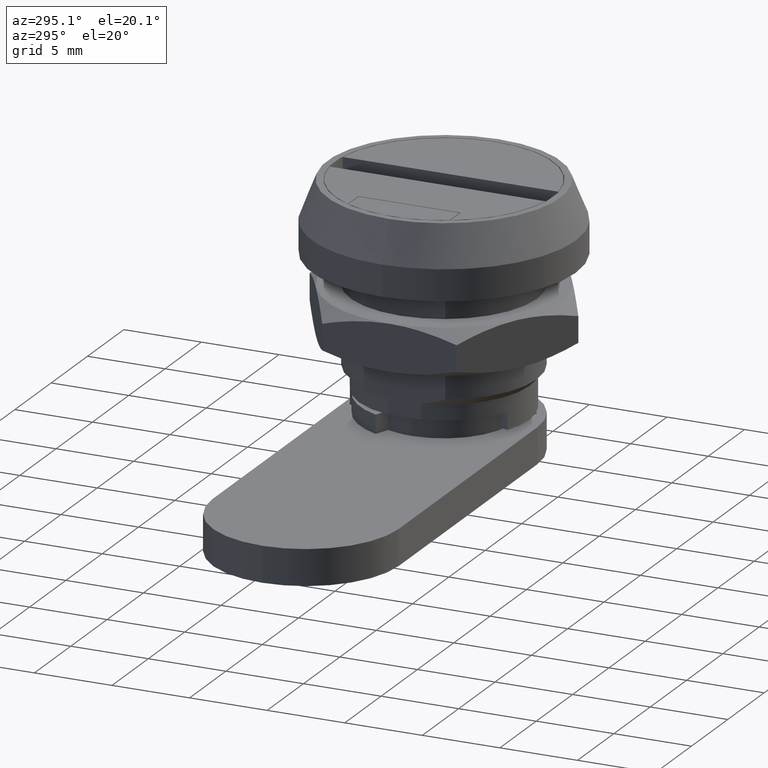
[diagram: clean part render]
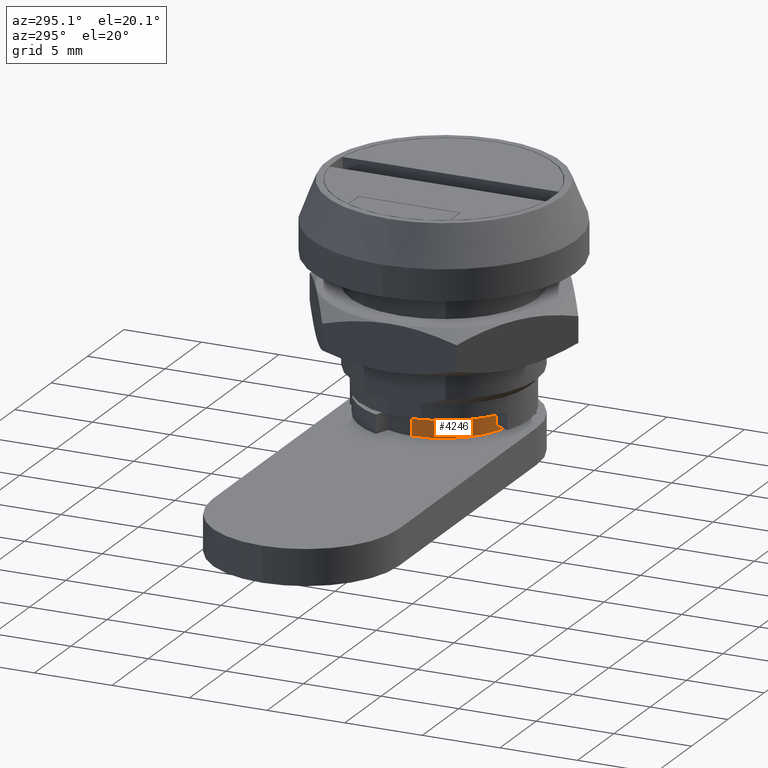
[diagram: same view with one face highlighted and labeled with its STEP entity id]
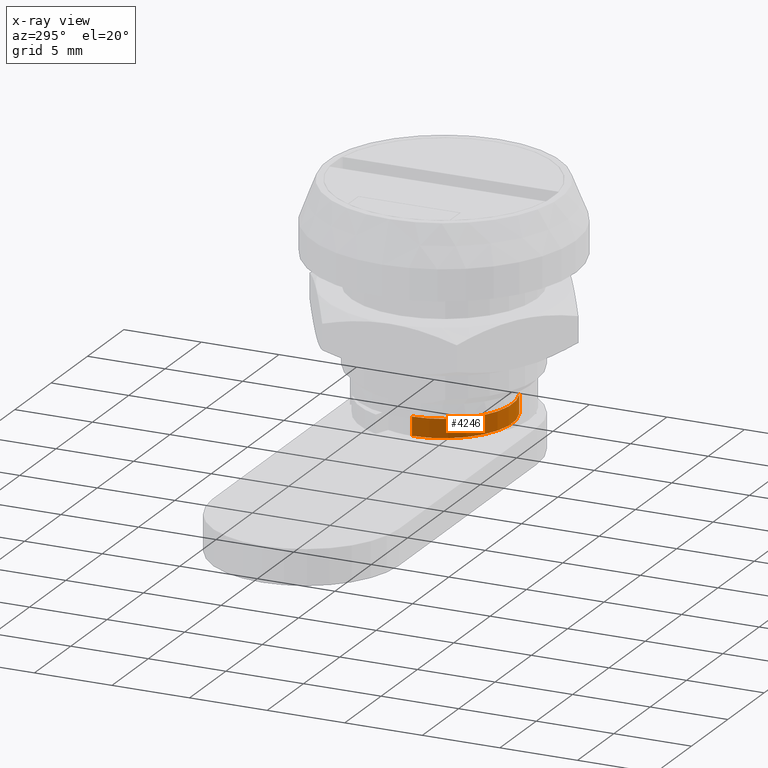
[diagram: x-ray of the same camera — body ghosted, the highlighted face saturated]
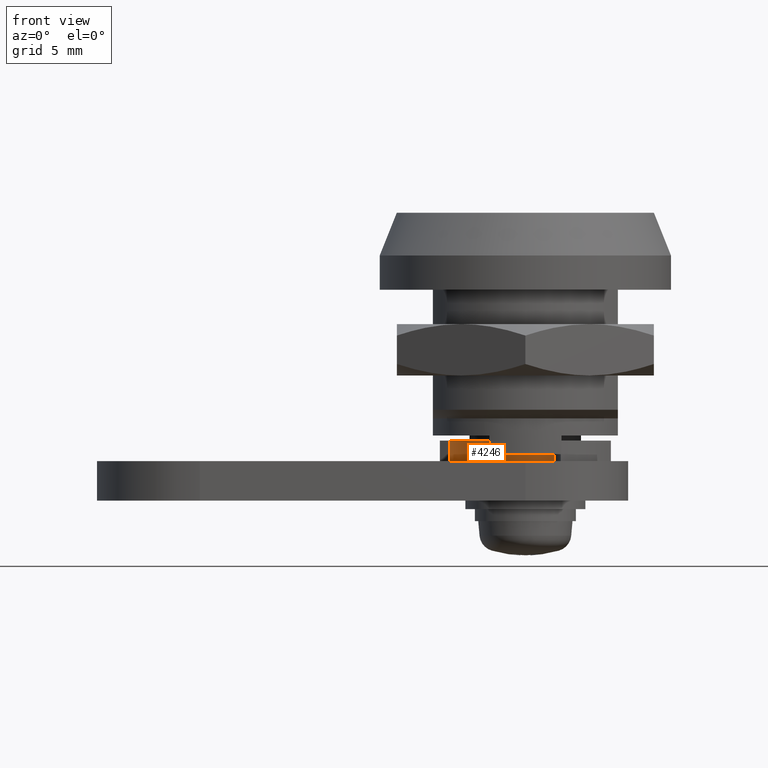
[diagram: same view with one face highlighted and labeled with its STEP entity id]
A machine part, auxiliary view. The second image highlights one B-rep face of the part: STEP entity #4246.
The next image is the same camera in x-ray: the body ghosted, the highlighted face saturated — about 0% of this face is hidden behind the body in this view.
A second angle (front view) of the same face is appended — the face is thin or edge-on in the first view.
In plain terms, the highlighted cylindrical surface (partial cylindrical patch) has radius 4.4 mm, axis along (-0, -0, -1).
Its self-contained STEP definition (entity closure, byte-faithful):
#218 = DIRECTION ( 'NONE',  ( 1.000000000000000000, 0.0000000000000000000, 0.0000000000000000000 ) ) ;
#244 = VERTEX_POINT ( 'NONE', #707 ) ;
#262 = CIRCLE ( 'NONE', #2223, 4.399999999968374100 ) ;
#264 = CIRCLE ( 'NONE', #983, 4.399999999968374100 ) ;
#272 = CARTESIAN_POINT ( 'NONE',  ( 1.683807102394859300, -4.065069943020209700, 0.0000000000000000000 ) ) ;
#454 = CARTESIAN_POINT ( 'NONE',  ( -4.399999999968374100, 0.0000000000000000000, 1.200000000000000000 ) ) ;
#650 = CARTESIAN_POINT ( 'NONE',  ( 0.0000000000000000000, 0.0000000000000000000, 0.0000000000000000000 ) ) ;
#653 = LINE ( 'NONE', #3643, #4350 ) ;
#664 = DIRECTION ( 'NONE',  ( 0.0000000000000000000, 0.0000000000000000000, 1.000000000000000000 ) ) ;
#707 = CARTESIAN_POINT ( 'NONE',  ( -4.399999999968374100, 0.0000000000000000000, 0.0000000000000000000 ) ) ;
#983 = AXIS2_PLACEMENT_3D ( 'NONE', #650, #664, #4424 ) ;
#1065 = FACE_OUTER_BOUND ( 'NONE', #3461, .T. ) ;
#1533 = ORIENTED_EDGE ( 'NONE', *, *, #2234, .F. ) ;
#1550 = VERTEX_POINT ( 'NONE', #272 ) ;
#1794 = ORIENTED_EDGE ( 'NONE', *, *, #3119, .T. ) ;
#1845 = CARTESIAN_POINT ( 'NONE',  ( -4.399999999968374100, 0.0000000000000000000, 1.200000000000000000 ) ) ;
#1871 = ORIENTED_EDGE ( 'NONE', *, *, #4489, .F. ) ;
#1934 = VERTEX_POINT ( 'NONE', #4100 ) ;
#2093 = EDGE_CURVE ( 'NONE', #244, #1550, #264, .T. ) ;
#2223 = AXIS2_PLACEMENT_3D ( 'NONE', #4394, #2309, #218 ) ;
#2234 = EDGE_CURVE ( 'NONE', #1934, #1550, #653, .T. ) ;
#2247 = DIRECTION ( 'NONE',  ( -0.0000000000000000000, -0.0000000000000000000, -1.000000000000000000 ) ) ;
#2309 = DIRECTION ( 'NONE',  ( 0.0000000000000000000, 0.0000000000000000000, 1.000000000000000000 ) ) ;
#2345 = DIRECTION ( 'NONE',  ( -0.0000000000000000000, -0.0000000000000000000, -1.000000000000000000 ) ) ;
#2378 = VECTOR ( 'NONE', #3588, 1000.000000000000000 ) ;
#2485 = LINE ( 'NONE', #454, #2378 ) ;
#2601 = DIRECTION ( 'NONE',  ( -1.000000000000000000, 0.0000000000000000000, 0.0000000000000000000 ) ) ;
#3119 = EDGE_CURVE ( 'NONE', #3764, #244, #2485, .T. ) ;
#3204 = ORIENTED_EDGE ( 'NONE', *, *, #2093, .T. ) ;
#3267 = AXIS2_PLACEMENT_3D ( 'NONE', #3304, #2247, #2601 ) ;
#3304 = CARTESIAN_POINT ( 'NONE',  ( 0.0000000000000000000, 0.0000000000000000000, 1.200000000000000000 ) ) ;
#3461 = EDGE_LOOP ( 'NONE', ( #1871, #1794, #3204, #1533 ) ) ;
#3588 = DIRECTION ( 'NONE',  ( -0.0000000000000000000, -0.0000000000000000000, -1.000000000000000000 ) ) ;
#3643 = CARTESIAN_POINT ( 'NONE',  ( 1.683807102394859300, -4.065069943020209700, 1.200000000000000000 ) ) ;
#3741 = CYLINDRICAL_SURFACE ( 'NONE', #3267, 4.399999999968374100 ) ;
#3764 = VERTEX_POINT ( 'NONE', #1845 ) ;
#4100 = CARTESIAN_POINT ( 'NONE',  ( 1.683807102394859300, -4.065069943020209700, 1.200000000000000000 ) ) ;
#4246 = ADVANCED_FACE ( 'NONE', ( #1065 ), #3741, .T. ) ;
#4350 = VECTOR ( 'NONE', #2345, 1000.000000000000000 ) ;
#4394 = CARTESIAN_POINT ( 'NONE',  ( 0.0000000000000000000, 0.0000000000000000000, 1.200000000000000000 ) ) ;
#4424 = DIRECTION ( 'NONE',  ( 1.000000000000000000, 0.0000000000000000000, 0.0000000000000000000 ) ) ;
#4489 = EDGE_CURVE ( 'NONE', #3764, #1934, #262, .T. ) ;